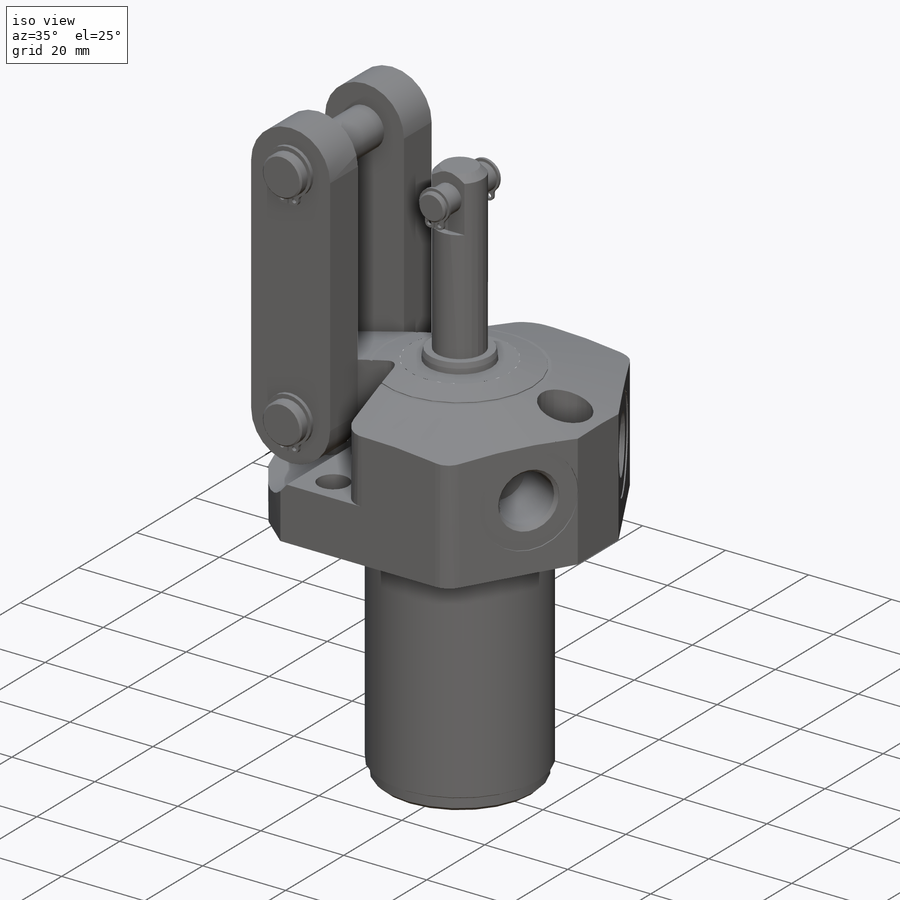
[diagram: iso view]
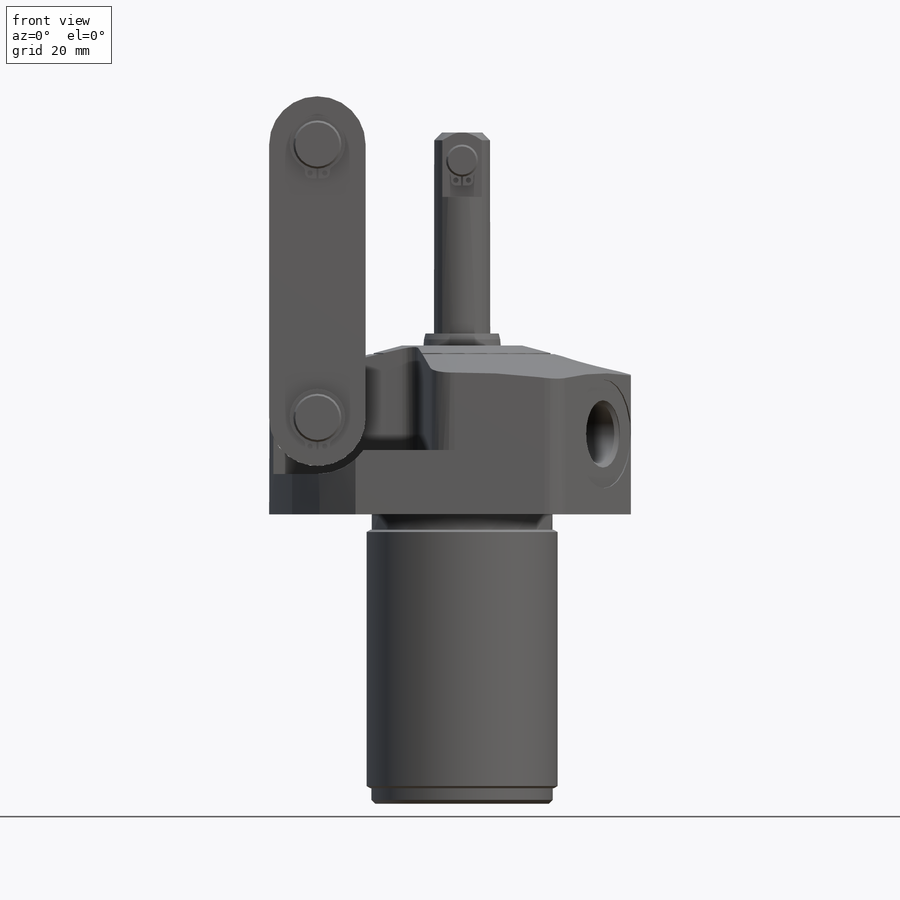
[diagram: front view]
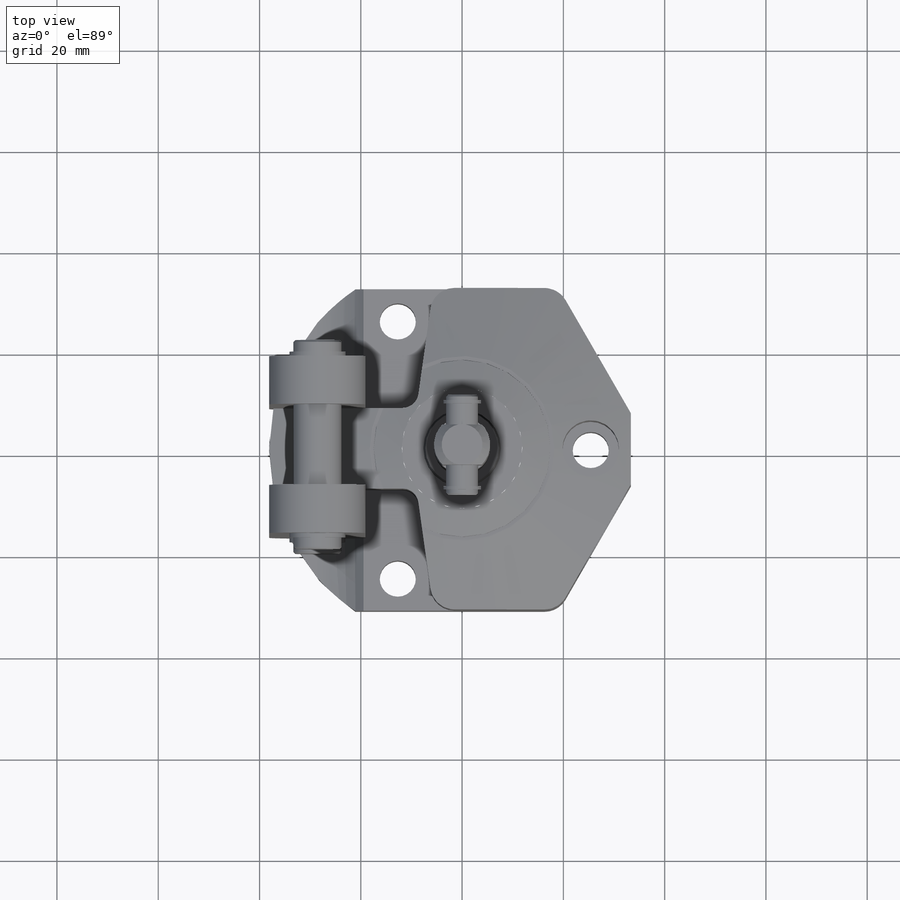
[diagram: top view]
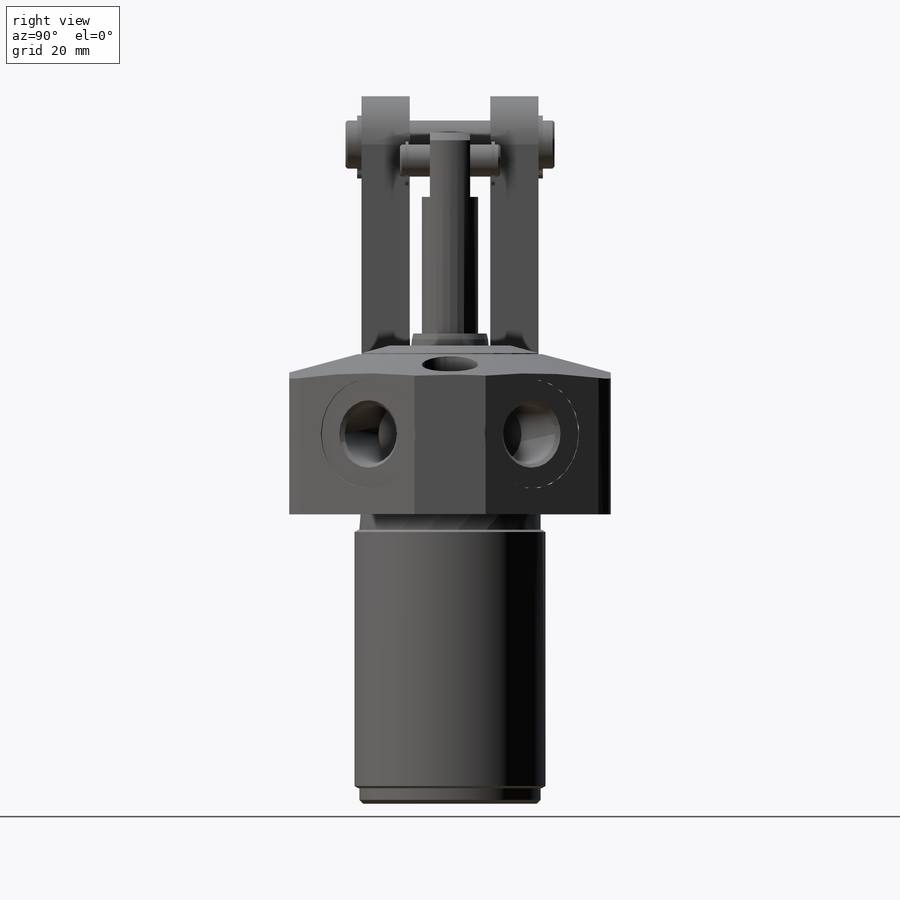
[diagram: right view]
SOLIDWORKS PART (.sldprt)
format: sldprt  version: not decoded by parser v0  size: 701,440 bytes
history: native  units: mm
features: sketch x19, extrude x6, cut_extrude x5, fillet x5, mirror x5, chamfer x4, revolve x3, cut_revolve x3, plane x2, material x1, hole x1, pattern_linear x1 (+13 scaffold rows collapsed)
feature tree (68):
  scaffold x13  (default folders/planes/origin — collapsed)
  material  "Alloy Steel"
  sketch  "Sketch28"  dims[c1.D1=35.814mm c1.D2=37.719mm c1.D3=57.15mm c1.D4=3.048mm c1.D5=76.2mm c1.D6=~23.889137mm c2.D6=15.0deg c2.D7=23.7998mm c2.D8=33.3248mm]
  revolve  "Revolve7"  Angle=360deg
  sketch  "Sketch3"  dims[c1.D1=63.5mm c1.D2=33.3248mm c1.D3=11.7348mm c2.D3=120.0deg c2.D4=19.05mm c2.D5=76.2mm]
  cut_extrude  "Cut-Extrude9"  [1 undecoded]
  chamfer  "Chamfer4"  Distance=0.762mm Angle=30deg
  chamfer  "Chamfer5"  Distance=0.762mm Angle=45deg
  plane  "Plane23"  Offset=15.875mm
  sketch  "S2D0007"  dims[c1.D1=0.254mm c1.D2=14.1732mm c1.D3=11.8872mm c1.D4=~0.963415mm c2.D4=45.0deg c2.D5=2.0828mm c3.D5=12.0deg c3.D6=0.127mm c3.D7=0.254mm c3.D8=21.4884mm c3.D1=13.3096mm]
  cut_revolve  "Cut-Revolve2"  Angle=360deg
  plane  "Plane24"  Offset=24.6126mm
  sketch  "Sketch6"  dims[c1.D1=1.4478mm c1.D2=11.0998mm c1.D3=1.2446mm c2.D3=59.0deg c2.D4=14.224mm c2.D5=2.4892mm c2.D6=1.1303mm c3.D6=59.0deg c3.D7=1.016mm c3.D8=6.5024mm c3.D9=11.3411mm c3.D10=4.7498mm c3.D2=9.525mm c3.D3=~2.144955mm c4.D3=59.0deg c4.D6=~1.353155mm c5.D6=59.0deg]
  cut_revolve  "Cut-Revolve3"  Angle=360deg
  sketch  "Sketch9"  dims[D2=11.0998mm D1=19.05mm D3=28.575mm D4=8.6106mm D5=12.7mm]
  cut_extrude  "Cut-Extrude4"  Depth=7.9502mm
  fillet  "Fillet4"  Radius=3.175mm
  mirror  "Mirror1"
  sketch  "Sketch12"  dims[D1=7.62mm D2=2.3876mm D3=6.0325mm]
  revolve  "Revolve2"  Angle=360deg
  sketch  "Sketch13"  dims[c1.D1=5.5372mm c1.D2=69.85mm c1.D3=11.0998mm c1.D4=0.762mm c2.D4=45.0deg c2.D5=1.524mm]
  revolve  "Revolve3"  Angle=360deg
  fillet  "Fillet6"  Radius=4.826mm
  fillet  "Fillet7"  Radius=4.826mm
  sketch  "Sketch14"  dims[D1=7.9248mm]
  cut_extrude  "Cut-Extrude7"  Depth=12.7mm
  sketch  "Sketch29"  dims[D1=6.3373mm D2=5.5372mm]
  extrude  "Extrude11"  Depth=19.8374mm
  sketch  "Sketch16"  dims[c1.D1=3.683mm c1.D4=4.7498mm c1.D6=0.635mm c1.D7=2.2225mm c1.D8=2.921mm c1.D10=1.0414mm c1.D11=1.0414mm c2.D6=1.0414mm c2.D4=1.0414mm c3.D6=1.0414mm c3.D2=2.032mm c3.D3=0.127mm c3.D4=~1.19888mm c3.D5=1.0414mm c3.D7=2.032mm c3.D9=~0.41656mm c4.D4=1.0414mm c4.D5=~1.24968mm]
  extrude  "Extrude2"  Depth=0.635mm
  chamfer  "Chamfer6"  Distance=0.381mm Angle=45deg
  mirror  "Mirror2"
  hole  "Hole1"  Diameter=7.1374mm Depth=33.3248mm
  sketch  "Sketch32"  dims[D1=25.4mm D2=25.4mm D3=25.4mm D4=12.7mm]
  sketch  "Sketch31"  dims[Diameter=7.1374mm Depth=33.3248mm C-Bore Diameter=11.1252mm C-Bore Depth=20.574mm]
  sketch  "Sketch30"  dims[D3=~9.50468mm D1=19.05mm D2=28.575mm]
  extrude  "Extrude12"  Depth=41.275mm
  sketch  "Sketch19"  dims[c1.D1=5.4991mm c1.D3=6.35mm c1.D4=1.0414mm c1.D5=1.0414mm c1.D6=1.0414mm c1.D9=4.4704mm c1.D2=2.2352mm c2.D3=0.2413mm c2.D7=~0.41656mm c2.D8=2.2352mm c2.D10=1.0414mm c2.D11=~1.24968mm]
  extrude  "Extrude4"  Depth=0.8763mm
  mirror  "Mirror3"
  chamfer  "Chamfer7"  Distance=0.381mm Angle=45deg
  sketch  "S2D0002"  dims[c1.D1=4.7498mm c1.D3=9.4996mm c1.D4=6.35mm c2.D1=~28.750848mm c2.D2=19.05mm c2.D4=53.975mm]
  extrude  "Extrude6"  Depth=9.525mm
  pattern_linear  "LPattern1"  Count1=2 Count2=1 Spacing1=53.975mm Spacing2=2.54mm
  mirror  "Mirror4"
  sketch  "Sketch26"  dims[D1=5.6896mm]
  extrude  "Extrude10"  Depth=1.651mm
  fillet  "Fillet3"  Radius=1.27mm
  sketch  "Sketch27"  dims[D1=2.0066mm]
  cut_extrude  "Cut-Extrude8"  Depth=0.762mm
  sketch  "Sketch34"  dims[c1.D1=20.6248mm c2.D1=8.0deg]
  cut_extrude  "Cut-Extrude10"  [1 undecoded]
  fillet  "Fillet8"  Radius=4.826mm
  sketch  "Sketch35"  dims[D1=34.925mm D2=0.2032mm]
  cut_revolve  "Cut-Revolve4"  Angle=360deg
  mirror  "Mirror5"
decode coverage: 45 of 52 modeling features carry decoded parameters
note: ~ marks probable driven/reference dimensions
note: 2 parameter values undecoded
note: suppression state not decoded; provenance and decode notes live in map.json
